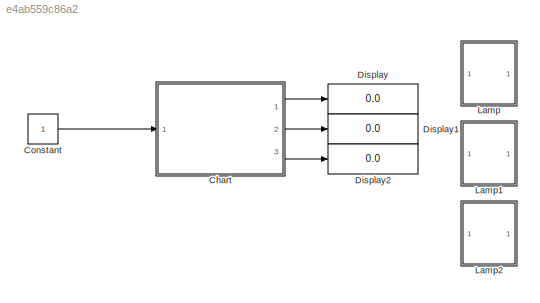
MODEL slx_e4ab559c86a2
KIND model
CONFIG AbsTol = auto
CONFIG EnableMultiTasking = off
CONFIG FixedStep = auto
CONFIG MaxStep = auto
CONFIG MinStep = auto
CONFIG RelTol = 1e-3
CONFIG SampleTimeConstraint = Unconstrained
CONFIG Solver = FixedStepDiscrete
CONFIG SolverName = FixedStepDiscrete
CONFIG StartTime = 0.0
CONFIG StopTime = 10.0
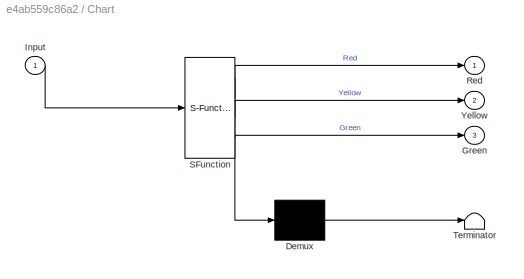
BLOCK [SubSystem] Chart
  ErrorFcn = Stateflow.Translate.translate
  PermitHierarchicalResolution = ExplicitOnly
  Ports = [1, 3]
  RequestExecContextInheritance = off
  SFBlockType = Chart
  TreatAsAtomicUnit = on
  Variant = off
BLOCK [Demux] Chart/ Demux 
  Outputs = 1
  Ports = [1, 1]
BLOCK [S-Function] Chart/ SFunction 
  EnableBusSupport = on
  FunctionName = sf_sfun
  PortCounts = [1 4]
  Ports = [1, 4]
  SFcnIsStateOwnerBlock = off
  SFunctionDeploymentMode = off
  Tag = Stateflow S-Function StateFloww 3
BLOCK [Terminator] Chart/ Terminator 
BLOCK [Outport] Chart/Green
  IconDisplay = Port number
  Port = 3
BLOCK [Inport] Chart/Input
  IconDisplay = Port number
BLOCK [Outport] Chart/Red
  IconDisplay = Port number
BLOCK [Outport] Chart/Yellow
  IconDisplay = Port number
  Port = 2
BLOCK [Constant] Constant
BLOCK [Display] Display
  Decimation = 1
  Ports = [1]
BLOCK [Display] Display1
  Decimation = 1
  Ports = [1]
BLOCK [Display] Display2
  Decimation = 1
  Ports = [1]
BLOCK [SubSystem] Lamp
  DialogController = hmiCreateDDGDialog
  IsWebBlock = on
  MaskHideContents = on
  Ports = []
  RequestExecContextInheritance = off
  Variant = off
BLOCK [SubSystem] Lamp1
  DialogController = hmiCreateDDGDialog
  IsWebBlock = on
  MaskHideContents = on
  Ports = []
  RequestExecContextInheritance = off
  Variant = off
BLOCK [SubSystem] Lamp2
  DialogController = hmiCreateDDGDialog
  IsWebBlock = on
  MaskHideContents = on
  Ports = []
  RequestExecContextInheritance = off
  Variant = off
LINE Chart:1 -> Display:1
LINE Chart:2 -> Display1:1
LINE Chart:3 -> Display2:1
LINE Constant:1 -> Chart:1
CHART Chart states=6 transitions=7
  STATE_LABEL 'ON'
  STATE_LABEL 'TrafficLights'
  STATE_LABEL 'OFF'
  STATE_LABEL 'RedLight\nentry:\nRed=1;\nYellow=0;\nGreen=0;\nexit:\nRed=0;\nYellow=0;\nGreen=0;'
  STATE_LABEL 'YellowLight\nentry:\nRed=0;\nYellow=1;\nGreen=0;\nexit:\nRed=0;\nYellow=0;\nGreen=0;'
  STATE_LABEL 'GreenLight\nentry:\nRed=0;\nYellow=0;\nGreen=1;\nexit:\nRed=0;\nYellow=0;\nGreen=0;'
